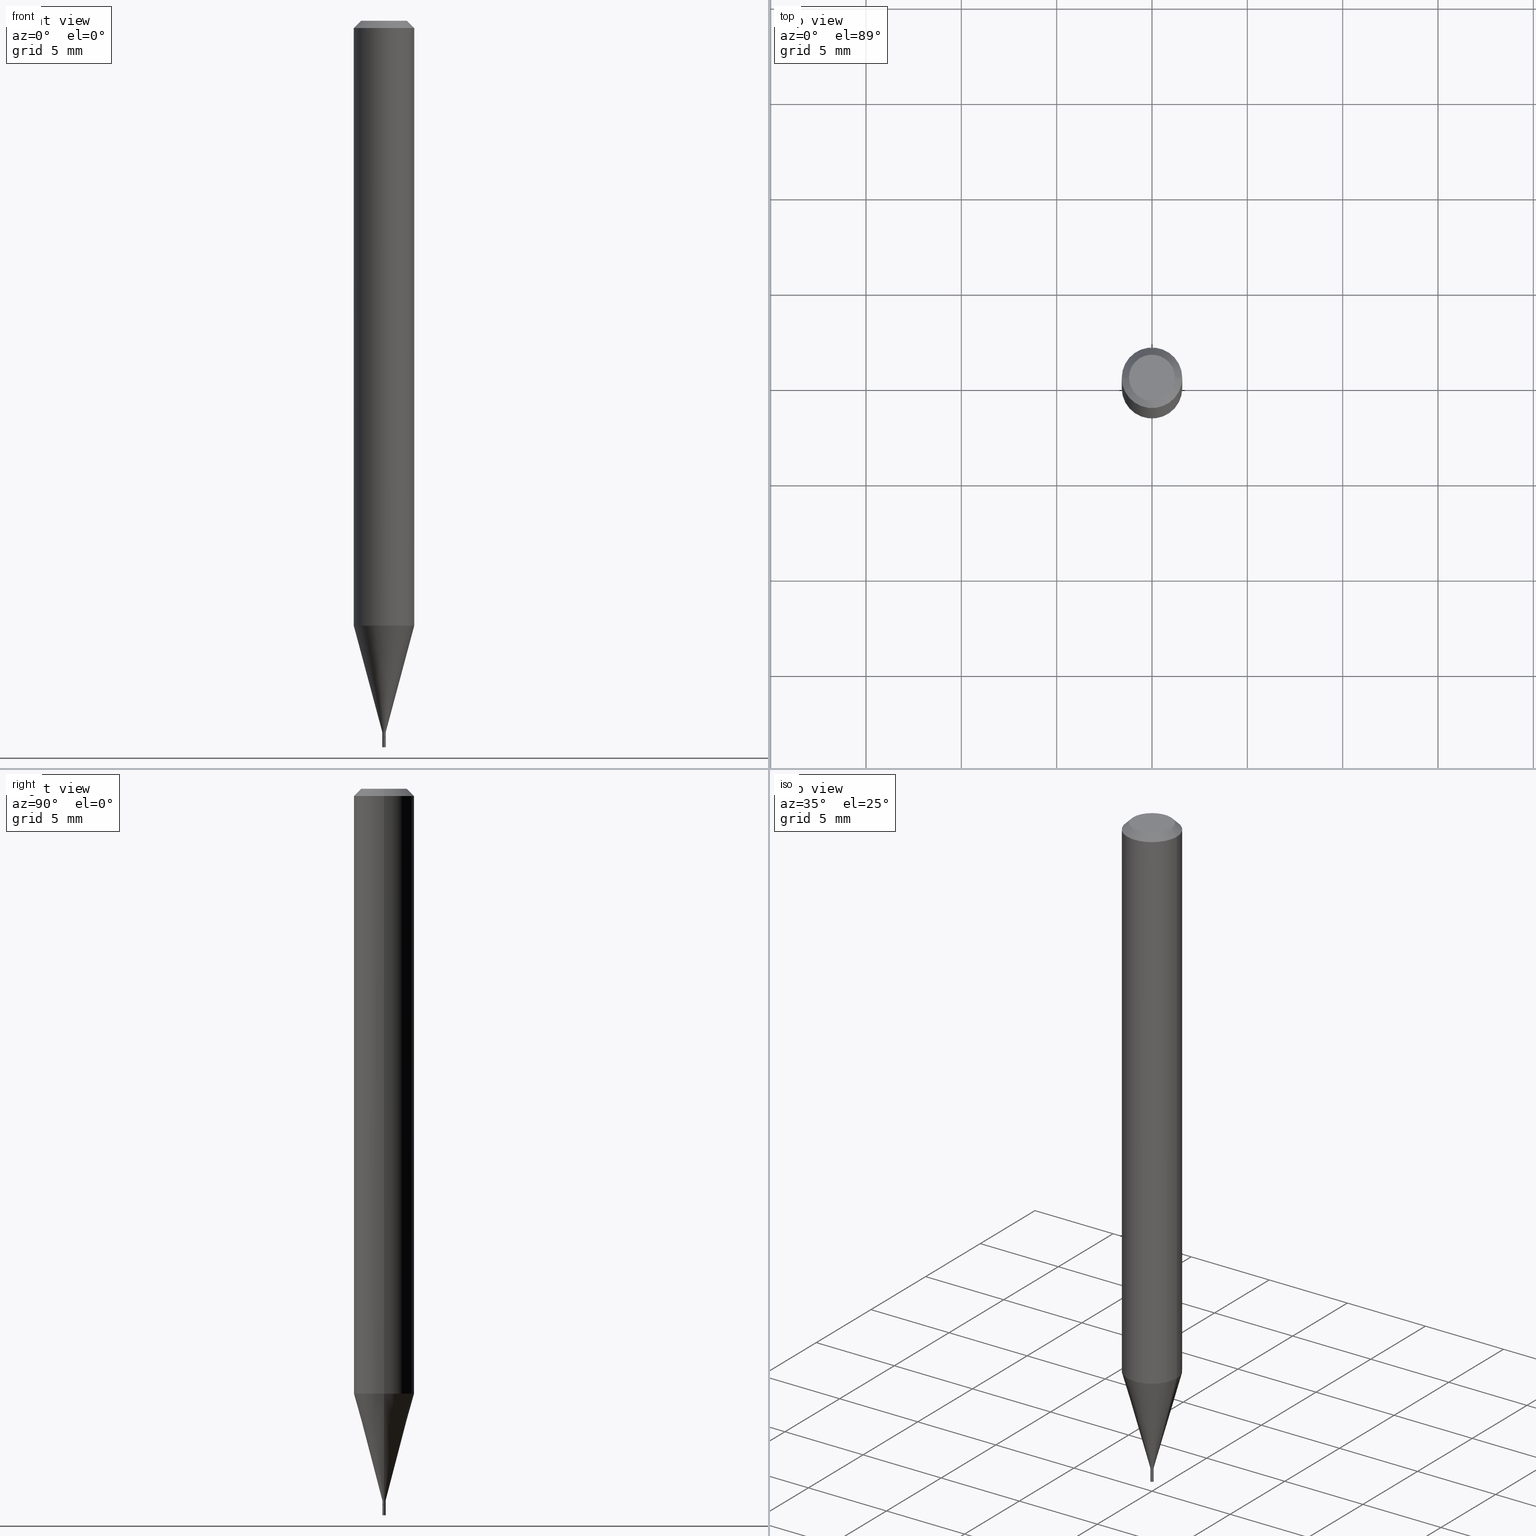
[diagram: canonical four-view strip — front | top / right | iso, engineering-drawing reading convention]
A machine part, canonical four-view strip (front | top / right | iso — engineering-drawing reading convention). The complete STEP part file that produces these views, byte-faithful:
ISO-10303-21;
HEADER;
FILE_DESCRIPTION (( 'STEP AP203' ),
    '1' );
FILE_NAME ('00813.STEP',
    '2024-03-19T22:27:10',
    ( '' ),
    ( '' ),
    'SwSTEP 2.0',
    'SolidWorks 2023',
    '' );
FILE_SCHEMA (( 'CONFIG_CONTROL_DESIGN' ));
ENDSEC;

DATA;
#1 = AXIS2_PLACEMENT_3D ( 'NONE', #181, #452, #139 ) ;
#2 = ORIENTED_EDGE ( 'NONE', *, *, #386, .T. ) ;
#3 = CC_DESIGN_DATE_AND_TIME_ASSIGNMENT ( #248, #239, ( #331 ) ) ;
#4 = ORIENTED_EDGE ( 'NONE', *, *, #324, .T. ) ;
#5 = CARTESIAN_POINT ( 'NONE',  ( 3.053923460138509831E-29, -4.360193327496349299E-15, -1.248809002353436615 ) ) ;
#6 = DIRECTION ( 'NONE',  ( 0.000000000000000000, 0.000000000000000000, 1.000000000000000000 ) ) ;
#7 = DIRECTION ( 'NONE',  ( -2.445468806185136597E-29, 3.491481338843145583E-15, 1.000000000000000000 ) ) ;
#8 = CC_DESIGN_DATE_AND_TIME_ASSIGNMENT ( #128, #415, ( #400 ) ) ;
#9 = VECTOR ( 'NONE', #182, 39.37007874015748143 ) ;
#10 = EDGE_LOOP ( 'NONE', ( #69, #149 ) ) ;
#11 = CYLINDRICAL_SURFACE ( 'NONE', #138, 0.003499999999999922878 ) ;
#12 = PERSON_AND_ORGANIZATION ( #27, #136 ) ;
#13 = ORIENTED_EDGE ( 'NONE', *, *, #15, .T. ) ;
#14 = EDGE_CURVE ( 'NONE', #201, #90, #451, .T. ) ;
#15 = EDGE_CURVE ( 'NONE', #352, #305, #419, .T. ) ;
#16 = ORIENTED_EDGE ( 'NONE', *, *, #270, .F. ) ;
#17 = CARTESIAN_POINT ( 'NONE',  ( 0.003500000000000000507, -5.261662377636620016E-15, -1.500000000000000222 ) ) ;
#18 = EDGE_LOOP ( 'NONE', ( #16, #431 ) ) ;
#19 = CLOSED_SHELL ( 'NONE', ( #447, #140, #39, #57 ) ) ;
#20 = AXIS2_PLACEMENT_3D ( 'NONE', #399, #82, #119 ) ;
#21 = APPROVAL_DATE_TIME ( #164, #64 ) ;
#22 = ORIENTED_EDGE ( 'NONE', *, *, #110, .F. ) ;
#23 = ORIENTED_EDGE ( 'NONE', *, *, #103, .T. ) ;
#24 = FACE_OUTER_BOUND ( 'NONE', #58, .T. ) ;
#25 = PERSON_AND_ORGANIZATION ( #27, #136 ) ;
#26 = CARTESIAN_POINT ( 'NONE',  ( 0.003500000000000000507, -5.188341269520914499E-15, -1.479000000000000092 ) ) ;
#27 = PERSON ( 'UNSPECIFIED', 'UNSPECIFIED', 'UNSPECIFIED', ('UNSPECIFIED'), ('UNSPECIFIED'), ('UNSPECIFIED') ) ;
#28 = AXIS2_PLACEMENT_3D ( 'NONE', #320, #280, #420 ) ;
#29 = CARTESIAN_POINT ( 'NONE',  ( 3.615625629944724521E-29, -5.162155159479591157E-15, -1.478500000000000147 ) ) ;
#30 = CARTESIAN_POINT ( 'NONE',  ( 3.869415696791911762E-44, -5.524500113600271674E-30, -1.582279719538967596E-15 ) ) ;
#31 = EDGE_CURVE ( 'NONE', #99, #90, #282, .T. ) ;
#32 = EDGE_CURVE ( 'NONE', #88, #200, #423, .T. ) ;
#33 = DIRECTION ( 'NONE',  ( -2.445468806185136597E-29, 3.491481338843145583E-15, 1.000000000000000000 ) ) ;
#34 = FACE_OUTER_BOUND ( 'NONE', #158, .T. ) ;
#35 = CARTESIAN_POINT ( 'NONE',  ( -0.06250000000000000000, 3.840629472727444916E-16, -0.01499999999999999944 ) ) ;
#36 = DIRECTION ( 'NONE',  ( -0.2588190451025213501, 5.211531920934551042E-15, 0.9659258262890682012 ) ) ;
#37 = EDGE_CURVE ( 'NONE', #99, #88, #364, .T. ) ;
#38 = FACE_OUTER_BOUND ( 'NONE', #296, .T. ) ;
#39 = ADVANCED_FACE ( 'NONE', ( #370 ), #137, .T. ) ;
#40 = AXIS2_PLACEMENT_3D ( 'NONE', #323, #458, #387 ) ;
#41 = DIMENSIONAL_EXPONENTS ( 1.000000000000000000, 0.000000000000000000, 0.000000000000000000, 0.000000000000000000, 0.000000000000000000, 0.000000000000000000, 0.000000000000000000 ) ;
#42 = DIRECTION ( 'NONE',  ( 1.000000000000000000, -6.982962677686266711E-15, 4.876176775795935232E-29 ) ) ;
#43 = DIRECTION ( 'NONE',  ( 1.000000000000000000, -6.982962677686349541E-15, 0.000000000000000000 ) ) ;
#44 = CARTESIAN_POINT ( 'NONE',  ( 3.869415696791911762E-44, -5.524500113600271674E-30, -1.582279719538967596E-15 ) ) ;
#45 = VECTOR ( 'NONE', #457, 39.37007874015748143 ) ;
#46 =( NAMED_UNIT ( * ) PLANE_ANGLE_UNIT ( ) SI_UNIT ( $, .RADIAN. ) );
#47 = ORIENTED_EDGE ( 'NONE', *, *, #418, .F. ) ;
#48 = CARTESIAN_POINT ( 'NONE',  ( 0.000000000000000000, 0.000000000000000000, 0.000000000000000000 ) ) ;
#49 = ORIENTED_EDGE ( 'NONE', *, *, #37, .F. ) ;
#50 = CARTESIAN_POINT ( 'NONE',  ( 3.668203209277705088E-31, -5.237222008264718399E-17, -0.01499999999999999944 ) ) ;
#51 = CARTESIAN_POINT ( 'NONE',  ( 0.06250000000000001388, -4.796628494851741757E-15, -1.248809002353436615 ) ) ;
#52 = LOCAL_TIME ( 18, 27, 10.00000000000000000, #346 ) ;
#53 = VERTEX_POINT ( 'NONE', #264 ) ;
#54 = DIRECTION ( 'NONE',  ( -2.445468806185136597E-29, 3.491481338843145583E-15, 1.000000000000000000 ) ) ;
#55 = CIRCLE ( 'NONE', #385, 0.003500000000000000507 ) ;
#56 = VECTOR ( 'NONE', #36, 39.37007874015747433 ) ;
#57 = ADVANCED_FACE ( 'NONE', ( #345 ), #356, .F. ) ;
#58 = EDGE_LOOP ( 'NONE', ( #317, #309, #86, #2 ) ) ;
#59 = FACE_OUTER_BOUND ( 'NONE', #232, .T. ) ;
#60 = SECURITY_CLASSIFICATION_LEVEL ( 'unclassified' ) ;
#61 = ORIENTED_EDGE ( 'NONE', *, *, #84, .T. ) ;
#62 = ORIENTED_EDGE ( 'NONE', *, *, #202, .T. ) ;
#63 = AXIS2_PLACEMENT_3D ( 'NONE', #193, #436, #394 ) ;
#64 = APPROVAL ( #421, 'UNSPECIFIED' ) ;
#65 = CYLINDRICAL_SURFACE ( 'NONE', #20, 0.003500000000000000507 ) ;
#66 = VECTOR ( 'NONE', #279, 39.37007874015748143 ) ;
#67 = AXIS2_PLACEMENT_3D ( 'NONE', #30, #33, #177 ) ;
#68 = CALENDAR_DATE ( 2024, 19, 3 ) ;
#69 = ORIENTED_EDGE ( 'NONE', *, *, #456, .F. ) ;
#70 = COORDINATED_UNIVERSAL_TIME_OFFSET ( 5, 0, .BEHIND. ) ;
#71 = LINE ( 'NONE', #212, #229 ) ;
#72 = AXIS2_PLACEMENT_3D ( 'NONE', #358, #284, #105 ) ;
#73 = FACE_OUTER_BOUND ( 'NONE', #120, .T. ) ;
#74 = ADVANCED_FACE ( 'NONE', ( #461 ), #170, .T. ) ;
#75 = EDGE_CURVE ( 'NONE', #411, #439, #213, .T. ) ;
#76 = DIRECTION ( 'NONE',  ( 1.000000000000000000, -6.982962677686331397E-15, 0.000000000000000000 ) ) ;
#77 = FACE_OUTER_BOUND ( 'NONE', #443, .T. ) ;
#78 = LINE ( 'NONE', #393, #351 ) ;
#79 = CIRCLE ( 'NONE', #395, 0.06250000000000000000 ) ;
#80 = DIRECTION ( 'NONE',  ( 1.000000000000000000, -6.982962677686266711E-15, 4.876176775795935793E-29 ) ) ;
#81 = DIRECTION ( 'NONE',  ( -2.445468806185136597E-29, 3.491481338843145583E-15, 1.000000000000000000 ) ) ;
#82 = DIRECTION ( 'NONE',  ( -2.445468806185136597E-29, 3.491481338843145583E-15, 1.000000000000000000 ) ) ;
#83 = LOCAL_TIME ( 18, 27, 10.00000000000000000, #245 ) ;
#84 = EDGE_CURVE ( 'NONE', #238, #201, #367, .T. ) ;
#85 = AXIS2_PLACEMENT_3D ( 'NONE', #189, #463, #42 ) ;
#86 = ORIENTED_EDGE ( 'NONE', *, *, #32, .T. ) ;
#87 = PLANE ( 'NONE',  #236 ) ;
#88 = VERTEX_POINT ( 'NONE', #299 ) ;
#89 = CARTESIAN_POINT ( 'NONE',  ( 3.616848364347817323E-29, -5.163900900149012660E-15, -1.479000000000000092 ) ) ;
#90 = VERTEX_POINT ( 'NONE', #224 ) ;
#91 = CLOSED_SHELL ( 'NONE', ( #145, #147, #252, #287, #450, #187, #289, #357, #117, #256, #294, #74 ) ) ;
#92 = CALENDAR_DATE ( 2024, 19, 3 ) ;
#93 = ORIENTED_EDGE ( 'NONE', *, *, #75, .F. ) ;
#94 = ORIENTED_EDGE ( 'NONE', *, *, #325, .T. ) ;
#95 = CC_DESIGN_PERSON_AND_ORGANIZATION_ASSIGNMENT ( #307, #313, ( #269 ) ) ;
#96 = PERSON_AND_ORGANIZATION_ROLE ( 'classification_officer' ) ;
#97 = FACE_OUTER_BOUND ( 'NONE', #402, .T. ) ;
#98 = APPROVAL_ROLE ( '' ) ;
#99 = VERTEX_POINT ( 'NONE', #234 ) ;
#100 = CIRCLE ( 'NONE', #1, 0.003499999999999922010 ) ;
#101 = AXIS2_PLACEMENT_3D ( 'NONE', #231, #376, #396 ) ;
#102 = APPROVAL_ROLE ( '' ) ;
#103 = EDGE_CURVE ( 'NONE', #347, #352, #272, .T. ) ;
#104 = DIRECTION ( 'NONE',  ( 1.000000000000000000, -6.982962677686331397E-15, 0.000000000000000000 ) ) ;
#105 = DIRECTION ( 'NONE',  ( 1.000000000000000000, -6.982962677686266711E-15, 4.876176775795935793E-29 ) ) ;
#106 = VECTOR ( 'NONE', #210, 39.37007874015748143 ) ;
#107 = CARTESIAN_POINT ( 'NONE',  ( 3.615625629944724521E-29, -5.162155159479591157E-15, -1.478500000000000147 ) ) ;
#108 = DIRECTION ( 'NONE',  ( -0.7071067811865645591, 7.493145998870415691E-15, 0.7071067811865304753 ) ) ;
#109 = CIRCLE ( 'NONE', #334, 0.06250000000000000000 ) ;
#110 = EDGE_CURVE ( 'NONE', #53, #347, #78, .T. ) ;
#111 =( CONVERSION_BASED_UNIT ( 'INCH', #199 ) LENGTH_UNIT ( ) NAMED_UNIT ( #41 ) );
#112 = ORIENTED_EDGE ( 'NONE', *, *, #135, .T. ) ;
#113 = ORIENTED_EDGE ( 'NONE', *, *, #428, .F. ) ;
#114 = CIRCLE ( 'NONE', #221, 0.003500000000000000507 ) ;
#115 = CARTESIAN_POINT ( 'NONE',  ( -0.003499999999999922878, 2.486899575160295852E-17, -1.721627281589179054E-31 ) ) ;
#116 = ORIENTED_EDGE ( 'NONE', *, *, #428, .T. ) ;
#117 = ADVANCED_FACE ( 'NONE', ( #194 ), #87, .F. ) ;
#118 = DIRECTION ( 'NONE',  ( 1.000000000000000000, -6.982962677686331397E-15, 0.000000000000000000 ) ) ;
#119 = DIRECTION ( 'NONE',  ( 1.000000000000000000, -6.982962677686266711E-15, 4.876176775795935232E-29 ) ) ;
#120 = EDGE_LOOP ( 'NONE', ( #354, #61, #404, #244 ) ) ;
#121 = DIRECTION ( 'NONE',  ( 1.000000000000000000, -6.982962677686270655E-15, 0.000000000000000000 ) ) ;
#122 = CC_DESIGN_APPROVAL ( #160, ( #400 ) ) ;
#123 = ORIENTED_EDGE ( 'NONE', *, *, #103, .F. ) ;
#124 = CIRCLE ( 'NONE', #389, 0.003499999999999923311 ) ;
#125 = PERSON_AND_ORGANIZATION_ROLE ( 'design_owner' ) ;
#126 = DIRECTION ( 'NONE',  ( 1.000000000000000000, -6.982962677686349541E-15, 0.000000000000000000 ) ) ;
#127 = ORIENTED_EDGE ( 'NONE', *, *, #151, .F. ) ;
#128 = DATE_AND_TIME ( #205, #453 ) ;
#129 = ORIENTED_EDGE ( 'NONE', *, *, #270, .T. ) ;
#130 = APPROVAL_STATUS ( 'not_yet_approved' ) ;
#131 = CARTESIAN_POINT ( 'NONE',  ( 0.06250000000000000000, -4.364351673553916694E-16, 3.047610484872459871E-30 ) ) ;
#132 = AXIS2_PLACEMENT_3D ( 'NONE', #263, #262, #344 ) ;
#133 = DIRECTION ( 'NONE',  ( 2.438088387897960049E-29, -3.491481338843145188E-15, -1.000000000000000000 ) ) ;
#134 = COORDINATED_UNIVERSAL_TIME_OFFSET ( 5, 0, .BEHIND. ) ;
#135 = EDGE_CURVE ( 'NONE', #201, #238, #109, .T. ) ;
#136 = ORGANIZATION ( 'UNSPECIFIED', 'UNSPECIFIED', '' ) ;
#137 = CYLINDRICAL_SURFACE ( 'NONE', #85, 0.003500000000000000507 ) ;
#138 = AXIS2_PLACEMENT_3D ( 'NONE', #302, #54, #80 ) ;
#139 = DIRECTION ( 'NONE',  ( 1.000000000000000000, -6.982962677686349541E-15, 0.000000000000000000 ) ) ;
#140 = ADVANCED_FACE ( 'NONE', ( #362 ), #156, .F. ) ;
#141 = CARTESIAN_POINT ( 'NONE',  ( -0.06250000000000001388, -3.916104117646285894E-15, -1.248809002353436615 ) ) ;
#142 = UNCERTAINTY_MEASURE_WITH_UNIT (LENGTH_MEASURE( 1.000000000000000082E-05 ), #111, 'distance_accuracy_value', 'NONE');
#143 = DATE_AND_TIME ( #68, #83 ) ;
#144 = APPROVAL_PERSON_ORGANIZATION ( #350, #160, #98 ) ;
#145 = ADVANCED_FACE ( 'NONE', ( #34 ), #11, .T. ) ;
#146 = CARTESIAN_POINT ( 'NONE',  ( 3.616848364347817323E-29, -5.163900900149012660E-15, -1.479000000000000092 ) ) ;
#147 = ADVANCED_FACE ( 'NONE', ( #38 ), #155, .T. ) ;
#148 = DIRECTION ( 'NONE',  ( -2.445468806185136597E-29, 3.491481338843145583E-15, 1.000000000000000000 ) ) ;
#149 = ORIENTED_EDGE ( 'NONE', *, *, #240, .F. ) ;
#150 = DIRECTION ( 'NONE',  ( 1.000000000000000000, -6.982962677686192558E-15, 0.000000000000000000 ) ) ;
#151 = EDGE_CURVE ( 'NONE', #381, #439, #198, .T. ) ;
#152 = EDGE_LOOP ( 'NONE', ( #369, #314, #4, #373 ) ) ;
#153 = LINE ( 'NONE', #115, #9 ) ;
#154 = ORIENTED_EDGE ( 'NONE', *, *, #37, .T. ) ;
#155 = CONICAL_SURFACE ( 'NONE', #222, 0.003000000000000000496, 0.7853981633974723708 ) ;
#156 = PLANE ( 'NONE',  #101 ) ;
#157 = AXIS2_PLACEMENT_3D ( 'NONE', #285, #424, #104 ) ;
#158 = EDGE_LOOP ( 'NONE', ( #116, #412, #271, #432 ) ) ;
#159 = CARTESIAN_POINT ( 'NONE',  ( -0.06250000000000000000, -1.762193563939435770E-15, -0.01499999999999999944 ) ) ;
#160 = APPROVAL ( #276, 'UNSPECIFIED' ) ;
#161 = CALENDAR_DATE ( 2024, 19, 3 ) ;
#162 = ORIENTED_EDGE ( 'NONE', *, *, #446, .T. ) ;
#163 =( GEOMETRIC_REPRESENTATION_CONTEXT ( 3 ) GLOBAL_UNCERTAINTY_ASSIGNED_CONTEXT ( ( #142 ) ) GLOBAL_UNIT_ASSIGNED_CONTEXT ( ( #111, #46, #398 ) ) REPRESENTATION_CONTEXT ( 'NONE', 'WORKASPACE' ) );
#164 = DATE_AND_TIME ( #161, #52 ) ;
#165 = ORIENTED_EDGE ( 'NONE', *, *, #372, .T. ) ;
#166 = CONICAL_SURFACE ( 'NONE', #157, 0.003000000000000000496, 0.7853981633974723708 ) ;
#167 = MECHANICAL_CONTEXT ( 'NONE', #217, 'mechanical' ) ;
#168 = CARTESIAN_POINT ( 'NONE',  ( 0.003000000000000000496, -5.184849788182071492E-15, -1.479000000000000092 ) ) ;
#169 = ORIENTED_EDGE ( 'NONE', *, *, #135, .F. ) ;
#170 = CYLINDRICAL_SURFACE ( 'NONE', #28, 0.003499999999999922878 ) ;
#171 = PRODUCT ( '00813', '00813', '', ( #167 ) ) ;
#172 = CYLINDRICAL_SURFACE ( 'NONE', #40, 0.06250000000000000000 ) ;
#173 = AXIS2_PLACEMENT_3D ( 'NONE', #430, #183, #266 ) ;
#174 = CARTESIAN_POINT ( 'NONE',  ( 3.592393676285966338E-29, -5.128986086760581011E-15, -1.469000000000000083 ) ) ;
#175 = CC_DESIGN_PERSON_AND_ORGANIZATION_ASSIGNMENT ( #12, #125, ( #171 ) ) ;
#176 = CARTESIAN_POINT ( 'NONE',  ( 0.003499999999999922878, -2.444036937190139509E-17, 1.706661871528540016E-31 ) ) ;
#177 = DIRECTION ( 'NONE',  ( 1.000000000000000000, -6.982962677686267499E-15, 5.108144071313017768E-29 ) ) ;
#178 = AXIS2_PLACEMENT_3D ( 'NONE', #50, #226, #290 ) ;
#179 = SHAPE_DEFINITION_REPRESENTATION ( #462, #444 ) ;
#180 = DIRECTION ( 'NONE',  ( 0.7071067811865848762, -7.319954787623382263E-15, -0.7071067811865101582 ) ) ;
#181 = CARTESIAN_POINT ( 'NONE',  ( 3.592393676285966338E-29, -5.128986086760581011E-15, -1.469000000000000083 ) ) ;
#182 = DIRECTION ( 'NONE',  ( -2.445468806185136877E-29, 3.491481338843145188E-15, 1.000000000000000000 ) ) ;
#183 = DIRECTION ( 'NONE',  ( -2.445468806185136597E-29, 3.491481338843145583E-15, 1.000000000000000000 ) ) ;
#184 = DIRECTION ( 'NONE',  ( 1.000000000000000000, -6.982962677686192558E-15, 0.000000000000000000 ) ) ;
#185 = CARTESIAN_POINT ( 'NONE',  ( 3.616848364347817323E-29, -5.163900900149012660E-15, -1.479000000000000092 ) ) ;
#186 = EDGE_CURVE ( 'NONE', #347, #208, #153, .T. ) ;
#187 = ADVANCED_FACE ( 'NONE', ( #375 ), #342, .T. ) ;
#188 = FACE_OUTER_BOUND ( 'NONE', #435, .T. ) ;
#189 = CARTESIAN_POINT ( 'NONE',  ( 0.000000000000000000, 0.000000000000000000, 0.000000000000000000 ) ) ;
#190 = DIRECTION ( 'NONE',  ( -2.445468806185136597E-29, 3.491481338843145583E-15, 1.000000000000000000 ) ) ;
#191 = AXIS2_PLACEMENT_3D ( 'NONE', #174, #203, #126 ) ;
#192 = ORIENTED_EDGE ( 'NONE', *, *, #151, .T. ) ;
#193 = CARTESIAN_POINT ( 'NONE',  ( 3.616848364347817323E-29, -5.163900900149012660E-15, -1.479000000000000092 ) ) ;
#194 = FACE_OUTER_BOUND ( 'NONE', #274, .T. ) ;
#195 = ORIENTED_EDGE ( 'NONE', *, *, #110, .T. ) ;
#196 = AXIS2_PLACEMENT_3D ( 'NONE', #146, #81, #184 ) ;
#197 = ORIENTED_EDGE ( 'NONE', *, *, #240, .T. ) ;
#198 = LINE ( 'NONE', #464, #434 ) ;
#199 = LENGTH_MEASURE_WITH_UNIT ( LENGTH_MEASURE( 0.02539999999999999897 ), #335 );
#200 = VERTEX_POINT ( 'NONE', #159 ) ;
#201 = VERTEX_POINT ( 'NONE', #51 ) ;
#202 = EDGE_CURVE ( 'NONE', #90, #200, #79, .T. ) ;
#203 = DIRECTION ( 'NONE',  ( -2.445468806185136597E-29, 3.491481338843145583E-15, 1.000000000000000000 ) ) ;
#204 = ORIENTED_EDGE ( 'NONE', *, *, #31, .T. ) ;
#205 = CALENDAR_DATE ( 2024, 19, 3 ) ;
#206 = EDGE_LOOP ( 'NONE', ( #233, #23, #13, #349 ) ) ;
#207 = AXIS2_PLACEMENT_3D ( 'NONE', #89, #465, #288 ) ;
#208 = VERTEX_POINT ( 'NONE', #328 ) ;
#209 = DIRECTION ( 'NONE',  ( -1.000000000000000000, 6.982962677686265922E-15, -4.876176775795935793E-29 ) ) ;
#210 = DIRECTION ( 'NONE',  ( -2.445468806185136877E-29, 3.491481338843145188E-15, 1.000000000000000000 ) ) ;
#211 = CC_DESIGN_SECURITY_CLASSIFICATION ( #400, ( #269 ) ) ;
#212 = CARTESIAN_POINT ( 'NONE',  ( 0.003499999999999922010, -5.153426456132482850E-15, -1.469000000000000083 ) ) ;
#213 = CIRCLE ( 'NONE', #207, 0.003500000000000000507 ) ;
#214 = CYLINDRICAL_SURFACE ( 'NONE', #72, 0.06250000000000000000 ) ;
#215 = APPROVAL_DATE_TIME ( #143, #160 ) ;
#216 = LINE ( 'NONE', #253, #359 ) ;
#217 = APPLICATION_CONTEXT ( 'configuration controlled 3d designs of mechanical parts and assemblies' ) ;
#218 = DIRECTION ( 'NONE',  ( 1.000000000000000000, -6.982962677686266711E-15, 0.000000000000000000 ) ) ;
#219 = CARTESIAN_POINT ( 'NONE',  ( 0.06250000000000000000, -4.811533449433679005E-16, -0.01499999999999999944 ) ) ;
#220 = LINE ( 'NONE', #329, #56 ) ;
#221 = AXIS2_PLACEMENT_3D ( 'NONE', #438, #190, #228 ) ;
#222 = AXIS2_PLACEMENT_3D ( 'NONE', #185, #330, #118 ) ;
#223 = CARTESIAN_POINT ( 'NONE',  ( 3.668203209277705088E-31, -5.237222008264718399E-17, -0.01499999999999999944 ) ) ;
#224 = CARTESIAN_POINT ( 'NONE',  ( 0.06250000000000000000, -4.888073874380388472E-16, -0.01499999999999999944 ) ) ;
#225 = DIRECTION ( 'NONE',  ( -2.438088387897960049E-29, 3.491481338843145188E-15, 1.000000000000000000 ) ) ;
#226 = DIRECTION ( 'NONE',  ( 2.445468806185136597E-29, -3.491481338843145583E-15, -1.000000000000000000 ) ) ;
#227 = CC_DESIGN_PERSON_AND_ORGANIZATION_ASSIGNMENT ( #442, #310, ( #269 ) ) ;
#228 = DIRECTION ( 'NONE',  ( 1.000000000000000000, -6.982962677686192558E-15, 0.000000000000000000 ) ) ;
#229 = VECTOR ( 'NONE', #318, 39.37007874015747433 ) ;
#230 = DIRECTION ( 'NONE',  ( 1.000000000000000000, -6.982962677686267499E-15, 5.108144071313017768E-29 ) ) ;
#231 = CARTESIAN_POINT ( 'NONE',  ( 3.584916967085606921E-29, -5.356492647442320375E-15, -1.500000000000000222 ) ) ;
#232 = EDGE_LOOP ( 'NONE', ( #112, #379, #449, #348 ) ) ;
#233 = ORIENTED_EDGE ( 'NONE', *, *, #186, .F. ) ;
#234 = CARTESIAN_POINT ( 'NONE',  ( 0.04749999999999999362, -4.035134999187605740E-16, -1.582279719538965032E-15 ) ) ;
#235 = ORIENTED_EDGE ( 'NONE', *, *, #32, .F. ) ;
#236 = AXIS2_PLACEMENT_3D ( 'NONE', #433, #366, #257 ) ;
#237 = VECTOR ( 'NONE', #455, 39.37007874015748143 ) ;
#238 = VERTEX_POINT ( 'NONE', #141 ) ;
#239 = DATE_TIME_ROLE ( 'creation_date' ) ;
#240 = EDGE_CURVE ( 'NONE', #381, #440, #55, .T. ) ;
#241 = ORIENTED_EDGE ( 'NONE', *, *, #456, .T. ) ;
#242 = ORIENTED_EDGE ( 'NONE', *, *, #374, .T. ) ;
#243 = COORDINATED_UNIVERSAL_TIME_OFFSET ( 5, 0, .BEHIND. ) ;
#244 = ORIENTED_EDGE ( 'NONE', *, *, #386, .F. ) ;
#245 = COORDINATED_UNIVERSAL_TIME_OFFSET ( 5, 0, .BEHIND. ) ;
#246 = LINE ( 'NONE', #249, #106 ) ;
#247 = AXIS2_PLACEMENT_3D ( 'NONE', #223, #365, #332 ) ;
#248 = DATE_AND_TIME ( #355, #427 ) ;
#249 = CARTESIAN_POINT ( 'NONE',  ( 0.003500000000000000507, -2.444036937190193743E-17, 1.706661871528577676E-31 ) ) ;
#250 = CC_DESIGN_PERSON_AND_ORGANIZATION_ASSIGNMENT ( #413, #96, ( #400 ) ) ;
#251 = CARTESIAN_POINT ( 'NONE',  ( 3.616848364347817323E-29, -5.163900900149012660E-15, -1.479000000000000092 ) ) ;
#252 = ADVANCED_FACE ( 'NONE', ( #188 ), #304, .T. ) ;
#253 = CARTESIAN_POINT ( 'NONE',  ( -0.06250000000000000000, 4.440892098500626162E-16, -3.074334431409316114E-30 ) ) ;
#254 = MANIFOLD_SOLID_BREP ( 'Body-Move/Copy2[2]', #91 ) ;
#255 = DIRECTION ( 'NONE',  ( 1.000000000000000000, -6.982962677686347174E-15, 0.000000000000000000 ) ) ;
#256 = ADVANCED_FACE ( 'NONE', ( #260 ), #401, .F. ) ;
#257 = DIRECTION ( 'NONE',  ( -1.000000000000000000, 6.982962677686265922E-15, -4.876176775795935793E-29 ) ) ;
#258 = CONICAL_SURFACE ( 'NONE', #247, 0.06250000000000000000, 0.7853981633975011256 ) ;
#259 = ORIENTED_EDGE ( 'NONE', *, *, #418, .T. ) ;
#260 = FACE_OUTER_BOUND ( 'NONE', #18, .T. ) ;
#261 = ORIENTED_EDGE ( 'NONE', *, *, #324, .F. ) ;
#262 = DIRECTION ( 'NONE',  ( -2.445468806185136597E-29, 3.491481338843145583E-15, 1.000000000000000000 ) ) ;
#263 = CARTESIAN_POINT ( 'NONE',  ( 3.592393676285966338E-29, -5.128986086760581011E-15, -1.469000000000000083 ) ) ;
#264 = CARTESIAN_POINT ( 'NONE',  ( -0.003000000000000000496, -5.139935390902099224E-15, -1.479000000000000092 ) ) ;
#265 = FACE_OUTER_BOUND ( 'NONE', #267, .T. ) ;
#266 = DIRECTION ( 'NONE',  ( 1.000000000000000000, -6.982962677686266711E-15, 0.000000000000000000 ) ) ;
#267 = EDGE_LOOP ( 'NONE', ( #162, #242, #169, #261 ) ) ;
#268 = DIRECTION ( 'NONE',  ( 1.000000000000000000, -6.982962677686270655E-15, 0.000000000000000000 ) ) ;
#269 = PRODUCT_DEFINITION_FORMATION_WITH_SPECIFIED_SOURCE ( 'ANY', '', #171, .NOT_KNOWN. ) ;
#270 = EDGE_CURVE ( 'NONE', #293, #53, #414, .T. ) ;
#271 = ORIENTED_EDGE ( 'NONE', *, *, #446, .F. ) ;
#272 = CIRCLE ( 'NONE', #322, 0.003499999999999923311 ) ;
#273 = CIRCLE ( 'NONE', #196, 0.003500000000000000507 ) ;
#274 = EDGE_LOOP ( 'NONE', ( #94, #154 ) ) ;
#275 = DATE_AND_TIME ( #92, #338 ) ;
#276 = APPROVAL_STATUS ( 'not_yet_approved' ) ;
#277 = CC_DESIGN_APPROVAL ( #360, ( #331 ) ) ;
#278 = PERSON_AND_ORGANIZATION ( #27, #136 ) ;
#279 = DIRECTION ( 'NONE',  ( -0.7071067811865848762, 2.468850131082647941E-15, -0.7071067811865101582 ) ) ;
#280 = DIRECTION ( 'NONE',  ( -2.445468806185136597E-29, 3.491481338843145583E-15, 1.000000000000000000 ) ) ;
#281 = PRODUCT_RELATED_PRODUCT_CATEGORY ( 'detail', '', ( #171 ) ) ;
#282 = LINE ( 'NONE', #219, #409 ) ;
#283 = CARTESIAN_POINT ( 'NONE',  ( 0.003499999999999922010, -5.153426456132482850E-15, -1.469000000000000083 ) ) ;
#284 = DIRECTION ( 'NONE',  ( -2.445468806185136597E-29, 3.491481338843145583E-15, 1.000000000000000000 ) ) ;
#285 = CARTESIAN_POINT ( 'NONE',  ( 3.616848364347817323E-29, -5.163900900149012660E-15, -1.479000000000000092 ) ) ;
#286 = AXIS2_PLACEMENT_3D ( 'NONE', #44, #425, #230 ) ;
#287 = ADVANCED_FACE ( 'NONE', ( #59 ), #172, .T. ) ;
#288 = DIRECTION ( 'NONE',  ( 1.000000000000000000, -6.982962677686192558E-15, 0.000000000000000000 ) ) ;
#289 = ADVANCED_FACE ( 'NONE', ( #73 ), #214, .T. ) ;
#290 = DIRECTION ( 'NONE',  ( -1.000000000000000000, 6.982962677686266711E-15, 0.000000000000000000 ) ) ;
#291 = CARTESIAN_POINT ( 'NONE',  ( -0.003500000000000000507, -5.175692458455261890E-15, -1.500000000000000222 ) ) ;
#292 = EDGE_CURVE ( 'NONE', #53, #293, #459, .T. ) ;
#293 = VERTEX_POINT ( 'NONE', #460 ) ;
#294 = ADVANCED_FACE ( 'NONE', ( #77 ), #166, .T. ) ;
#295 = APPLICATION_PROTOCOL_DEFINITION ( 'international standard', 'config_control_design', 1994, #217 ) ;
#296 = EDGE_LOOP ( 'NONE', ( #129, #195, #113, #47 ) ) ;
#297 = DIRECTION ( 'NONE',  ( -2.445468806185136597E-29, 3.491481338843145583E-15, 1.000000000000000000 ) ) ;
#298 = APPROVAL_PERSON_ORGANIZATION ( #25, #64, #102 ) ;
#299 = CARTESIAN_POINT ( 'NONE',  ( -0.04749999999999999362, 3.578768372314182896E-16, -1.582279719538970160E-15 ) ) ;
#300 = AXIS2_PLACEMENT_3D ( 'NONE', #343, #148, #43 ) ;
#301 = CONICAL_SURFACE ( 'NONE', #300, 0.003499999999999922010, 0.2617993877991500740 ) ;
#302 = CARTESIAN_POINT ( 'NONE',  ( 0.000000000000000000, 0.000000000000000000, 0.000000000000000000 ) ) ;
#303 = EDGE_LOOP ( 'NONE', ( #337, #165 ) ) ;
#304 = CONICAL_SURFACE ( 'NONE', #178, 0.06250000000000000000, 0.7853981633975011256 ) ;
#305 = VERTEX_POINT ( 'NONE', #283 ) ;
#306 = CARTESIAN_POINT ( 'NONE',  ( 3.668203209277705088E-31, -5.237222008264718399E-17, -0.01499999999999999944 ) ) ;
#307 = PERSON_AND_ORGANIZATION ( #27, #136 ) ;
#308 = EDGE_LOOP ( 'NONE', ( #127, #197, #336, #333 ) ) ;
#309 = ORIENTED_EDGE ( 'NONE', *, *, #325, .F. ) ;
#310 = PERSON_AND_ORGANIZATION_ROLE ( 'creator' ) ;
#311 = VECTOR ( 'NONE', #405, 39.37007874015748143 ) ;
#312 = CARTESIAN_POINT ( 'NONE',  ( 3.668203209277704895E-29, -5.237222008264718177E-15, -1.500000000000000222 ) ) ;
#313 = PERSON_AND_ORGANIZATION_ROLE ( 'design_supplier' ) ;
#314 = ORIENTED_EDGE ( 'NONE', *, *, #340, .T. ) ;
#315 = APPLICATION_CONTEXT ( 'configuration controlled 3d designs of mechanical parts and assemblies' ) ;
#316 = CARTESIAN_POINT ( 'NONE',  ( -0.003500000000000000507, -5.175692458455261890E-15, -1.479000000000000092 ) ) ;
#317 = ORIENTED_EDGE ( 'NONE', *, *, #31, .F. ) ;
#318 = DIRECTION ( 'NONE',  ( 0.2588190451025213501, 1.565188264969621968E-15, 0.9659258262890682012 ) ) ;
#319 = EDGE_CURVE ( 'NONE', #238, #200, #216, .T. ) ;
#320 = CARTESIAN_POINT ( 'NONE',  ( 0.000000000000000000, 0.000000000000000000, 0.000000000000000000 ) ) ;
#321 = APPLICATION_PROTOCOL_DEFINITION ( 'international standard', 'config_control_design', 1994, #315 ) ;
#322 = AXIS2_PLACEMENT_3D ( 'NONE', #107, #7, #255 ) ;
#323 = CARTESIAN_POINT ( 'NONE',  ( 0.000000000000000000, 0.000000000000000000, 0.000000000000000000 ) ) ;
#324 = EDGE_CURVE ( 'NONE', #305, #201, #71, .T. ) ;
#325 = EDGE_CURVE ( 'NONE', #88, #99, #341, .T. ) ;
#326 = CARTESIAN_POINT ( 'NONE',  ( 2.444036937193810177E-17, 0.003499999999994836668, -1.479000000000000092 ) ) ;
#327 = AXIS2_PLACEMENT_3D ( 'NONE', #251, #391, #76 ) ;
#328 = CARTESIAN_POINT ( 'NONE',  ( -0.003499999999999922010, -4.510110604327631885E-15, -1.469000000000000083 ) ) ;
#329 = CARTESIAN_POINT ( 'NONE',  ( -0.003499999999999922010, -5.104117091008977877E-15, -1.469000000000000083 ) ) ;
#330 = DIRECTION ( 'NONE',  ( -2.445468806185136597E-29, 3.491481338843145583E-15, 1.000000000000000000 ) ) ;
#331 = PRODUCT_DEFINITION ( 'UNKNOWN', '', #269, #466 ) ;
#332 = DIRECTION ( 'NONE',  ( -1.000000000000000000, 6.982962677686266711E-15, 0.000000000000000000 ) ) ;
#333 = ORIENTED_EDGE ( 'NONE', *, *, #372, .F. ) ;
#334 = AXIS2_PLACEMENT_3D ( 'NONE', #5, #408, #268 ) ;
#335 =( LENGTH_UNIT ( ) NAMED_UNIT ( * ) SI_UNIT ( $, .METRE. ) );
#336 = ORIENTED_EDGE ( 'NONE', *, *, #397, .T. ) ;
#337 = ORIENTED_EDGE ( 'NONE', *, *, #75, .T. ) ;
#338 = LOCAL_TIME ( 18, 27, 10.00000000000000000, #70 ) ;
#339 = DIRECTION ( 'NONE',  ( -2.445468806185136877E-29, 3.491481338843145188E-15, 1.000000000000000000 ) ) ;
#340 = EDGE_CURVE ( 'NONE', #208, #305, #100, .T. ) ;
#341 = CIRCLE ( 'NONE', #67, 0.04749999999999999362 ) ;
#342 = CONICAL_SURFACE ( 'NONE', #132, 0.003499999999999922010, 0.2617993877991500740 ) ;
#343 = CARTESIAN_POINT ( 'NONE',  ( 3.592393676285966338E-29, -5.128986086760581011E-15, -1.469000000000000083 ) ) ;
#344 = DIRECTION ( 'NONE',  ( 1.000000000000000000, -6.982962677686349541E-15, 0.000000000000000000 ) ) ;
#345 = FACE_OUTER_BOUND ( 'NONE', #303, .T. ) ;
#346 = COORDINATED_UNIVERSAL_TIME_OFFSET ( 5, 0, .BEHIND. ) ;
#347 = VERTEX_POINT ( 'NONE', #392 ) ;
#348 = ORIENTED_EDGE ( 'NONE', *, *, #14, .F. ) ;
#349 = ORIENTED_EDGE ( 'NONE', *, *, #340, .F. ) ;
#350 = PERSON_AND_ORGANIZATION ( #27, #136 ) ;
#351 = VECTOR ( 'NONE', #108, 39.37007874015748143 ) ;
#352 = VERTEX_POINT ( 'NONE', #390 ) ;
#353 = LINE ( 'NONE', #168, #237 ) ;
#354 = ORIENTED_EDGE ( 'NONE', *, *, #319, .F. ) ;
#355 = CALENDAR_DATE ( 2024, 19, 3 ) ;
#356 = PLANE ( 'NONE',  #383 ) ;
#357 = ADVANCED_FACE ( 'NONE', ( #24 ), #258, .T. ) ;
#358 = CARTESIAN_POINT ( 'NONE',  ( 0.000000000000000000, 0.000000000000000000, 0.000000000000000000 ) ) ;
#359 = VECTOR ( 'NONE', #361, 39.37007874015748143 ) ;
#360 = APPROVAL ( #130, 'UNSPECIFIED' ) ;
#361 = DIRECTION ( 'NONE',  ( -2.445468806185136877E-29, 3.491481338843145188E-15, 1.000000000000000000 ) ) ;
#362 = FACE_OUTER_BOUND ( 'NONE', #10, .T. ) ;
#363 = CIRCLE ( 'NONE', #173, 0.06250000000000000000 ) ;
#364 = CIRCLE ( 'NONE', #286, 0.04749999999999999362 ) ;
#365 = DIRECTION ( 'NONE',  ( 2.445468806185136597E-29, -3.491481338843145583E-15, -1.000000000000000000 ) ) ;
#366 = DIRECTION ( 'NONE',  ( 2.438088387897960049E-29, -3.491481338843145188E-15, -1.000000000000000000 ) ) ;
#367 = CIRCLE ( 'NONE', #388, 0.06250000000000000000 ) ;
#368 = CIRCLE ( 'NONE', #191, 0.003499999999999922010 ) ;
#369 = ORIENTED_EDGE ( 'NONE', *, *, #374, .F. ) ;
#370 = FACE_OUTER_BOUND ( 'NONE', #308, .T. ) ;
#371 = DIRECTION ( 'NONE',  ( 1.000000000000000000, -6.982962677686265922E-15, 4.876176775795935793E-29 ) ) ;
#372 = EDGE_CURVE ( 'NONE', #439, #411, #273, .T. ) ;
#373 = ORIENTED_EDGE ( 'NONE', *, *, #84, .F. ) ;
#374 = EDGE_CURVE ( 'NONE', #208, #238, #220, .T. ) ;
#375 = FACE_OUTER_BOUND ( 'NONE', #152, .T. ) ;
#376 = DIRECTION ( 'NONE',  ( -2.438088387897960049E-29, 3.491481338843145188E-15, 1.000000000000000000 ) ) ;
#377 = ORIENTED_EDGE ( 'NONE', *, *, #292, .T. ) ;
#378 = DIRECTION ( 'NONE',  ( 1.000000000000000000, 0.000000000000000000, 0.000000000000000000 ) ) ;
#379 = ORIENTED_EDGE ( 'NONE', *, *, #319, .T. ) ;
#380 = DIRECTION ( 'NONE',  ( 1.000000000000000000, -6.982962677686347174E-15, 0.000000000000000000 ) ) ;
#381 = VERTEX_POINT ( 'NONE', #291 ) ;
#382 = PERSON_AND_ORGANIZATION ( #27, #136 ) ;
#383 = AXIS2_PLACEMENT_3D ( 'NONE', #326, #133, #209 ) ;
#384 = ORIENTED_EDGE ( 'NONE', *, *, #397, .F. ) ;
#385 = AXIS2_PLACEMENT_3D ( 'NONE', #312, #297, #150 ) ;
#386 = EDGE_CURVE ( 'NONE', #200, #90, #363, .T. ) ;
#387 = DIRECTION ( 'NONE',  ( 1.000000000000000000, -6.982962677686266711E-15, 4.876176775795935793E-29 ) ) ;
#388 = AXIS2_PLACEMENT_3D ( 'NONE', #426, #403, #121 ) ;
#389 = AXIS2_PLACEMENT_3D ( 'NONE', #29, #448, #380 ) ;
#390 = CARTESIAN_POINT ( 'NONE',  ( 0.003499999999999923311, -5.186595528851492996E-15, -1.478500000000000147 ) ) ;
#391 = DIRECTION ( 'NONE',  ( -2.445468806185136597E-29, 3.491481338843145583E-15, 1.000000000000000000 ) ) ;
#392 = CARTESIAN_POINT ( 'NONE',  ( -0.003499999999999923311, -5.137286163727988811E-15, -1.478500000000000147 ) ) ;
#393 = CARTESIAN_POINT ( 'NONE',  ( -0.003000000000000000496, -5.142584618076209636E-15, -1.479000000000000092 ) ) ;
#394 = DIRECTION ( 'NONE',  ( 1.000000000000000000, -6.982962677686331397E-15, 0.000000000000000000 ) ) ;
#395 = AXIS2_PLACEMENT_3D ( 'NONE', #306, #441, #218 ) ;
#396 = DIRECTION ( 'NONE',  ( 1.000000000000000000, -6.982962677686265922E-15, 4.876176775795935793E-29 ) ) ;
#397 = EDGE_CURVE ( 'NONE', #440, #411, #246, .T. ) ;
#398 =( NAMED_UNIT ( * ) SI_UNIT ( $, .STERADIAN. ) SOLID_ANGLE_UNIT ( ) );
#399 = CARTESIAN_POINT ( 'NONE',  ( 0.000000000000000000, 0.000000000000000000, 0.000000000000000000 ) ) ;
#400 = SECURITY_CLASSIFICATION ( '', '', #60 ) ;
#401 = PLANE ( 'NONE',  #437 ) ;
#402 = EDGE_LOOP ( 'NONE', ( #241, #192, #93, #384 ) ) ;
#403 = DIRECTION ( 'NONE',  ( -2.445468806185136597E-29, 3.491481338843145583E-15, 1.000000000000000000 ) ) ;
#404 = ORIENTED_EDGE ( 'NONE', *, *, #14, .T. ) ;
#405 = DIRECTION ( 'NONE',  ( -2.445468806185136877E-29, 3.491481338843145188E-15, 1.000000000000000000 ) ) ;
#406 = MANIFOLD_SOLID_BREP ( 'Body-Move/Copy2[1]', #19 ) ;
#407 = CC_DESIGN_APPROVAL ( #64, ( #269 ) ) ;
#408 = DIRECTION ( 'NONE',  ( -2.445468806185136597E-29, 3.491481338843145583E-15, 1.000000000000000000 ) ) ;
#409 = VECTOR ( 'NONE', #180, 39.37007874015748143 ) ;
#410 = APPROVAL_ROLE ( '' ) ;
#411 = VERTEX_POINT ( 'NONE', #26 ) ;
#412 = ORIENTED_EDGE ( 'NONE', *, *, #186, .T. ) ;
#413 = PERSON_AND_ORGANIZATION ( #27, #136 ) ;
#414 = CIRCLE ( 'NONE', #63, 0.003000000000000000496 ) ;
#415 = DATE_TIME_ROLE ( 'classification_date' ) ;
#416 = CC_DESIGN_PERSON_AND_ORGANIZATION_ASSIGNMENT ( #278, #417, ( #331 ) ) ;
#417 = PERSON_AND_ORGANIZATION_ROLE ( 'creator' ) ;
#418 = EDGE_CURVE ( 'NONE', #293, #352, #353, .T. ) ;
#419 = LINE ( 'NONE', #176, #45 ) ;
#420 = DIRECTION ( 'NONE',  ( 1.000000000000000000, -6.982962677686266711E-15, 4.876176775795935793E-29 ) ) ;
#421 = APPROVAL_STATUS ( 'not_yet_approved' ) ;
#422 = APPROVAL_PERSON_ORGANIZATION ( #382, #360, #410 ) ;
#423 = LINE ( 'NONE', #35, #66 ) ;
#424 = DIRECTION ( 'NONE',  ( -2.445468806185136597E-29, 3.491481338843145583E-15, 1.000000000000000000 ) ) ;
#425 = DIRECTION ( 'NONE',  ( -2.445468806185136597E-29, 3.491481338843145583E-15, 1.000000000000000000 ) ) ;
#426 = CARTESIAN_POINT ( 'NONE',  ( 3.053923460138509831E-29, -4.360193327496349299E-15, -1.248809002353436615 ) ) ;
#427 = LOCAL_TIME ( 18, 27, 10.00000000000000000, #134 ) ;
#428 = EDGE_CURVE ( 'NONE', #352, #347, #124, .T. ) ;
#429 = CARTESIAN_POINT ( 'NONE',  ( 3.616848364347817323E-29, -5.163900900149012660E-15, -1.479000000000000092 ) ) ;
#430 = CARTESIAN_POINT ( 'NONE',  ( 3.668203209277705088E-31, -5.237222008264718399E-17, -0.01499999999999999944 ) ) ;
#431 = ORIENTED_EDGE ( 'NONE', *, *, #292, .F. ) ;
#432 = ORIENTED_EDGE ( 'NONE', *, *, #15, .F. ) ;
#433 = CARTESIAN_POINT ( 'NONE',  ( 3.316907271900976096E-16, 0.04749999999999999362, -9.569852233645332438E-16 ) ) ;
#434 = VECTOR ( 'NONE', #339, 39.37007874015748143 ) ;
#435 = EDGE_LOOP ( 'NONE', ( #49, #204, #62, #235 ) ) ;
#436 = DIRECTION ( 'NONE',  ( -2.445468806185136597E-29, 3.491481338843145583E-15, 1.000000000000000000 ) ) ;
#437 = AXIS2_PLACEMENT_3D ( 'NONE', #429, #225, #371 ) ;
#438 = CARTESIAN_POINT ( 'NONE',  ( 3.668203209277704895E-29, -5.237222008264718177E-15, -1.500000000000000222 ) ) ;
#439 = VERTEX_POINT ( 'NONE', #316 ) ;
#440 = VERTEX_POINT ( 'NONE', #17 ) ;
#441 = DIRECTION ( 'NONE',  ( -2.445468806185136597E-29, 3.491481338843145583E-15, 1.000000000000000000 ) ) ;
#442 = PERSON_AND_ORGANIZATION ( #27, #136 ) ;
#443 = EDGE_LOOP ( 'NONE', ( #22, #377, #259, #123 ) ) ;
#444 = ADVANCED_BREP_SHAPE_REPRESENTATION ( '00813', ( #406, #254, #445 ), #163 ) ;
#445 = AXIS2_PLACEMENT_3D ( 'NONE', #48, #6, #378 ) ;
#446 = EDGE_CURVE ( 'NONE', #305, #208, #368, .T. ) ;
#447 = ADVANCED_FACE ( 'NONE', ( #97 ), #65, .T. ) ;
#448 = DIRECTION ( 'NONE',  ( -2.445468806185136597E-29, 3.491481338843145583E-15, 1.000000000000000000 ) ) ;
#449 = ORIENTED_EDGE ( 'NONE', *, *, #202, .F. ) ;
#450 = ADVANCED_FACE ( 'NONE', ( #265 ), #301, .T. ) ;
#451 = LINE ( 'NONE', #131, #311 ) ;
#452 = DIRECTION ( 'NONE',  ( -2.445468806185136597E-29, 3.491481338843145583E-15, 1.000000000000000000 ) ) ;
#453 = LOCAL_TIME ( 18, 27, 10.00000000000000000, #243 ) ;
#454 = APPROVAL_DATE_TIME ( #275, #360 ) ;
#455 = DIRECTION ( 'NONE',  ( 0.7071067811865645591, -2.468850131082435343E-15, 0.7071067811865304753 ) ) ;
#456 = EDGE_CURVE ( 'NONE', #440, #381, #114, .T. ) ;
#457 = DIRECTION ( 'NONE',  ( -2.445468806185136877E-29, 3.491481338843145188E-15, 1.000000000000000000 ) ) ;
#458 = DIRECTION ( 'NONE',  ( -2.445468806185136597E-29, 3.491481338843145583E-15, 1.000000000000000000 ) ) ;
#459 = CIRCLE ( 'NONE', #327, 0.003000000000000000496 ) ;
#460 = CARTESIAN_POINT ( 'NONE',  ( 0.003000000000000000496, -5.184849788182071492E-15, -1.479000000000000092 ) ) ;
#461 = FACE_OUTER_BOUND ( 'NONE', #206, .T. ) ;
#462 = PRODUCT_DEFINITION_SHAPE ( 'NONE', 'NONE',  #331 ) ;
#463 = DIRECTION ( 'NONE',  ( -2.445468806185136597E-29, 3.491481338843145583E-15, 1.000000000000000000 ) ) ;
#464 = CARTESIAN_POINT ( 'NONE',  ( -0.003500000000000000507, 2.486899575160351010E-17, -1.721627281589217151E-31 ) ) ;
#465 = DIRECTION ( 'NONE',  ( -2.445468806185136597E-29, 3.491481338843145583E-15, 1.000000000000000000 ) ) ;
#466 = DESIGN_CONTEXT ( 'detailed design', #315, 'design' ) ;
ENDSEC;
END-ISO-10303-21;
